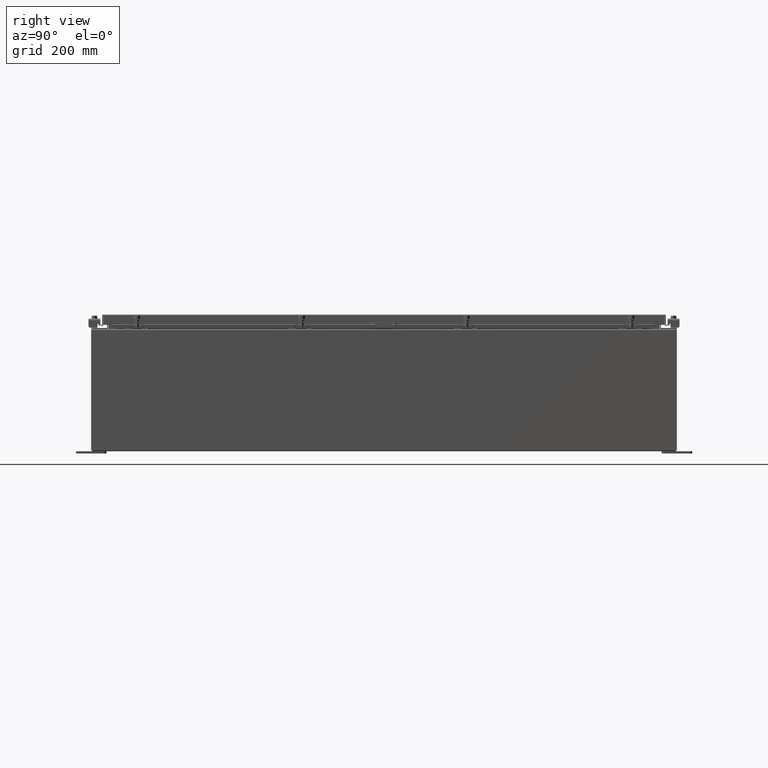
[diagram: clean part render]
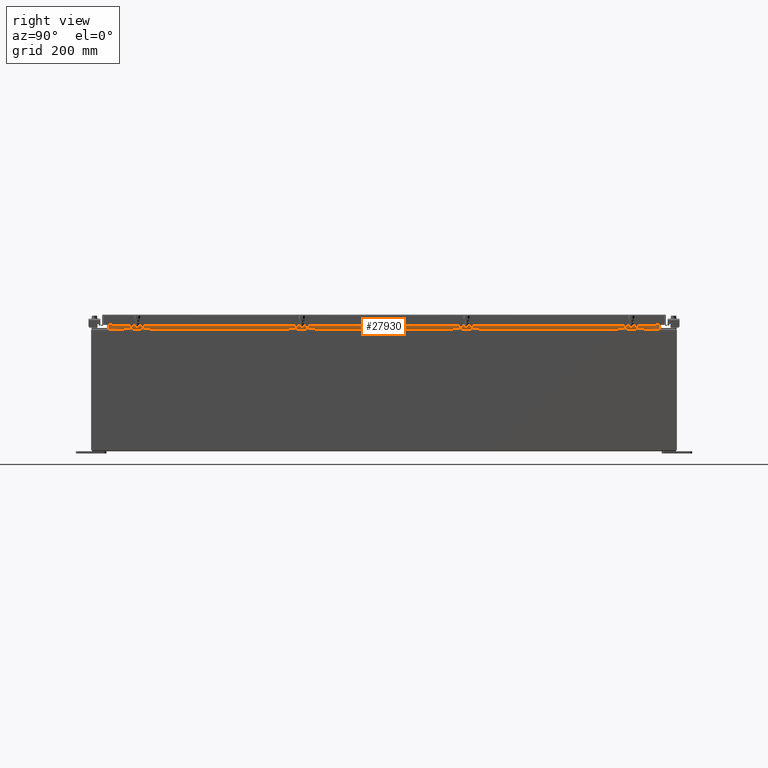
[diagram: same view with one face highlighted and labeled with its STEP entity id]
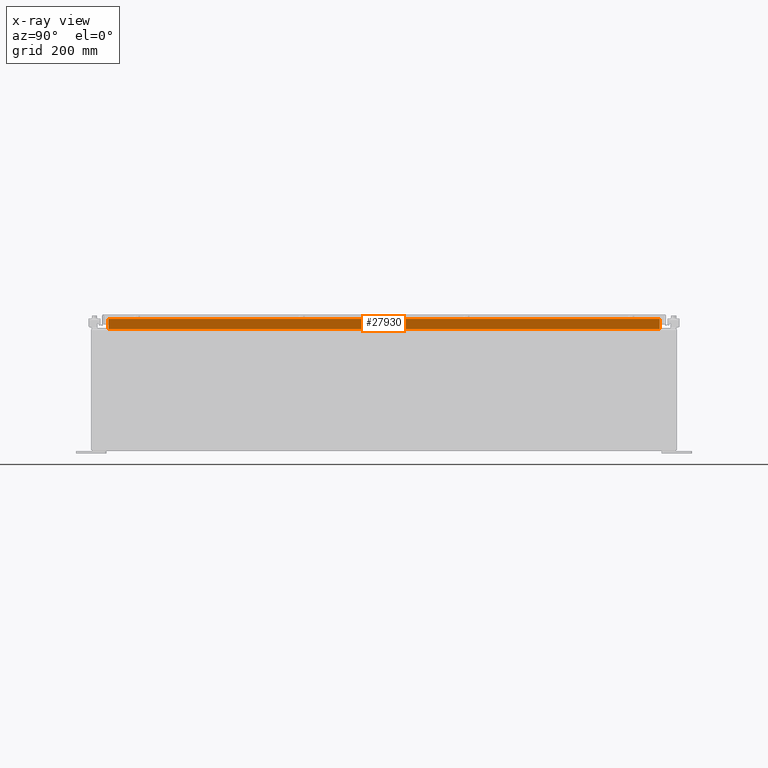
[diagram: x-ray of the same camera — body ghosted, the highlighted face saturated]
A machine part, right view. The second image highlights one B-rep face of the part: STEP entity #27930.
The next image is the same camera in x-ray: the body ghosted, the highlighted face saturated — about 0% of this face is hidden behind the body in this view.
In plain terms, the highlighted planar face has unit normal (1, 0, -0).
Its self-contained STEP definition (entity closure, byte-faithful):
#2759 = LINE ( 'NONE', #21627, #33673 ) ;
#3924 = VECTOR ( 'NONE', #49135, 39.37007874015748100 ) ;
#6715 = VERTEX_POINT ( 'NONE', #25650 ) ;
#10041 = ORIENTED_EDGE ( 'NONE', *, *, #30685, .F. ) ;
#10410 = EDGE_CURVE ( 'NONE', #16520, #31702, #24142, .T. ) ;
#11779 = FACE_OUTER_BOUND ( 'NONE', #33906, .T. ) ;
#13629 = DIRECTION ( 'NONE',  ( 1.000000000000000000, 0.0000000000000000000, -2.361913319930193300E-015 ) ) ;
#14465 = VECTOR ( 'NONE', #16647, 39.37007874015748100 ) ;
#16138 = EDGE_CURVE ( 'NONE', #31702, #30312, #2759, .T. ) ;
#16520 = VERTEX_POINT ( 'NONE', #42347 ) ;
#16647 = DIRECTION ( 'NONE',  ( 4.836466710774910500E-017, -1.000000000000000000, 9.672933421549820900E-017 ) ) ;
#17027 = ORIENTED_EDGE ( 'NONE', *, *, #16138, .F. ) ;
#17521 = PLANE ( 'NONE',  #22164 ) ;
#20370 = DIRECTION ( 'NONE',  ( 0.0000000000000000000, 1.000000000000000000, 0.0000000000000000000 ) ) ;
#21523 = DIRECTION ( 'NONE',  ( -2.361913319930193300E-015, -0.0000000000000000000, -1.000000000000000000 ) ) ;
#21627 = CARTESIAN_POINT ( 'NONE',  ( 13.69970000000003400, -22.59374999999997500, 10.76290000000001100 ) ) ;
#22164 = AXIS2_PLACEMENT_3D ( 'NONE', #25599, #13629, #41717 ) ;
#24142 = LINE ( 'NONE', #48830, #3924 ) ;
#25599 = CARTESIAN_POINT ( 'NONE',  ( 13.69970000000001100, 0.0000000000000000000, -3.235750390904769000E-014 ) ) ;
#25650 = CARTESIAN_POINT ( 'NONE',  ( 13.69970000000003400, 22.59374999999997900, 9.938300000000010600 ) ) ;
#26427 = LINE ( 'NONE', #32625, #14465 ) ;
#27930 = ADVANCED_FACE ( 'NONE', ( #11779 ), #17521, .T. ) ;
#28986 = ORIENTED_EDGE ( 'NONE', *, *, #10410, .F. ) ;
#30312 = VERTEX_POINT ( 'NONE', #43278 ) ;
#30685 = EDGE_CURVE ( 'NONE', #30312, #6715, #47292, .T. ) ;
#31702 = VERTEX_POINT ( 'NONE', #36193 ) ;
#32625 = CARTESIAN_POINT ( 'NONE',  ( 13.69970000000003600, 22.59374999999998200, 9.938300000000008800 ) ) ;
#33276 = ORIENTED_EDGE ( 'NONE', *, *, #45046, .F. ) ;
#33673 = VECTOR ( 'NONE', #20370, 39.37007874015748100 ) ;
#33906 = EDGE_LOOP ( 'NONE', ( #10041, #17027, #28986, #33276 ) ) ;
#36193 = CARTESIAN_POINT ( 'NONE',  ( 13.69970000000003600, -22.59374999999997500, 10.76290000000001100 ) ) ;
#36619 = VECTOR ( 'NONE', #21523, 39.37007874015748100 ) ;
#41717 = DIRECTION ( 'NONE',  ( -2.361913319930193300E-015, 0.0000000000000000000, -1.000000000000000000 ) ) ;
#42347 = CARTESIAN_POINT ( 'NONE',  ( 13.69970000000003400, -22.59374999999997900, 9.938300000000010600 ) ) ;
#43278 = CARTESIAN_POINT ( 'NONE',  ( 13.69970000000003400, 22.59374999999998200, 10.76290000000001100 ) ) ;
#45046 = EDGE_CURVE ( 'NONE', #6715, #16520, #26427, .T. ) ;
#47292 = LINE ( 'NONE', #49619, #36619 ) ;
#48830 = CARTESIAN_POINT ( 'NONE',  ( 13.69970000000003600, -22.59374999999997500, 10.85060000000001100 ) ) ;
#49135 = DIRECTION ( 'NONE',  ( 2.361913319930198800E-015, -0.0000000000000000000, 1.000000000000000000 ) ) ;
#49619 = CARTESIAN_POINT ( 'NONE',  ( 13.69970000000003400, 22.59374999999998200, 9.925300000000008900 ) ) ;